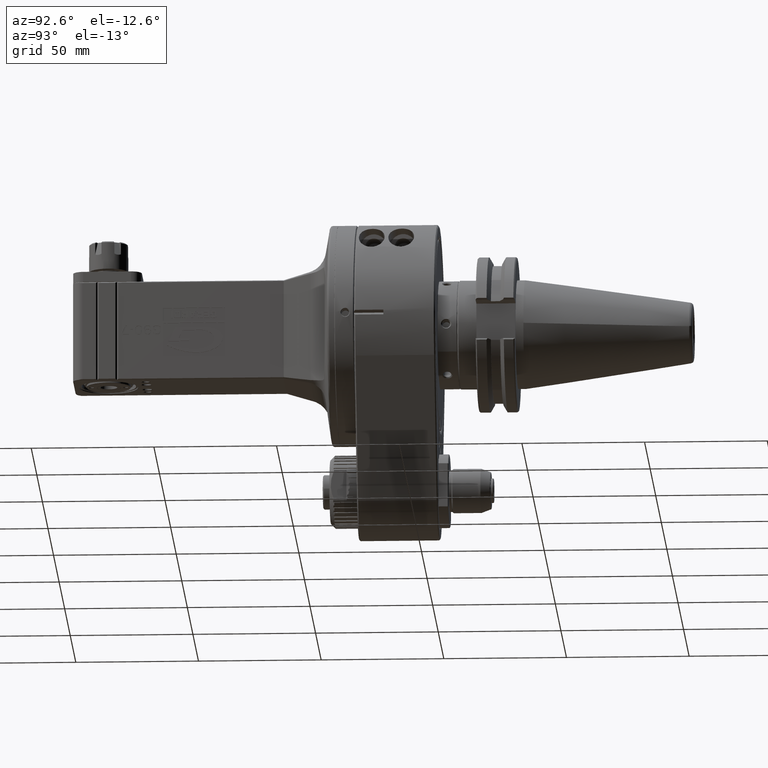
[diagram: clean part render]
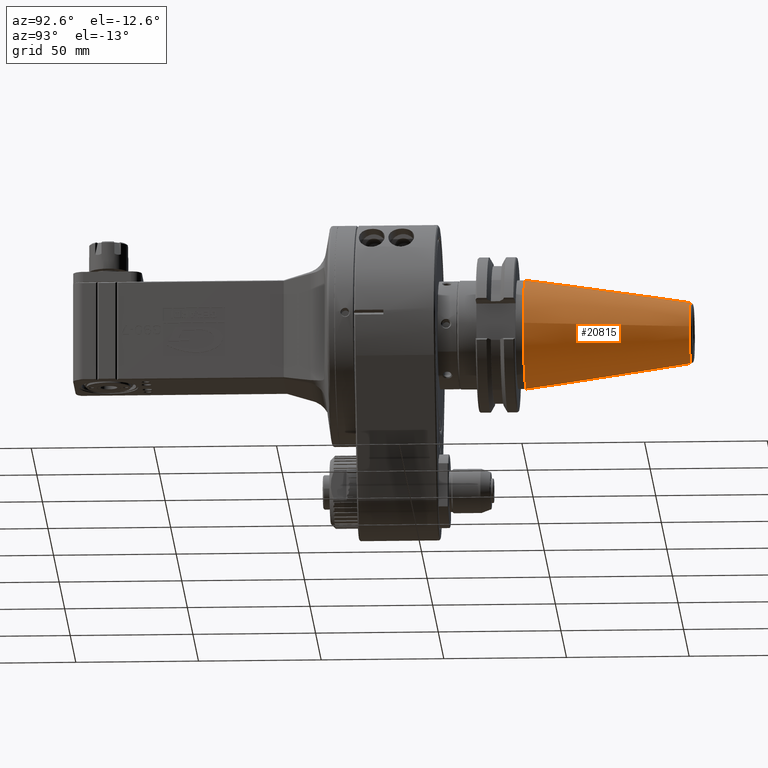
[diagram: same view with one face highlighted and labeled with its STEP entity id]
A machine part, auxiliary view. The second image highlights one B-rep face of the part: STEP entity #20815.
In plain terms, the highlighted conical surface has half-angle 8.29 deg.
Its self-contained STEP definition (entity closure, byte-faithful):
#590=CONICAL_SURFACE('',#22772,17.32914378212,0.14468779499033);
#2326=LINE('',#40315,#4128);
#4128=VECTOR('',#28282,17.32914378212);
#5676=FACE_OUTER_BOUND('',#6957,.T.);
#6957=EDGE_LOOP('',(#18462,#18463,#18464,#18465,#18466,#18467));
#7842=CIRCLE('',#22770,22.225);
#7843=CIRCLE('',#22771,22.225);
#7844=CIRCLE('',#22773,12.43328756423);
#7845=CIRCLE('',#22774,12.43328756423);
#9779=VERTEX_POINT('',#40308);
#9780=VERTEX_POINT('',#40309);
#9781=VERTEX_POINT('',#40314);
#9782=VERTEX_POINT('',#40316);
#12703=EDGE_CURVE('',#9779,#9780,#7842,.T.);
#12704=EDGE_CURVE('',#9780,#9779,#7843,.T.);
#12706=EDGE_CURVE('',#9779,#9781,#2326,.T.);
#12707=EDGE_CURVE('',#9782,#9781,#7844,.T.);
#12708=EDGE_CURVE('',#9781,#9782,#7845,.T.);
#18462=ORIENTED_EDGE('',*,*,#12703,.T.);
#18463=ORIENTED_EDGE('',*,*,#12704,.T.);
#18464=ORIENTED_EDGE('',*,*,#12706,.T.);
#18465=ORIENTED_EDGE('',*,*,#12707,.F.);
#18466=ORIENTED_EDGE('',*,*,#12708,.F.);
#18467=ORIENTED_EDGE('',*,*,#12706,.F.);
#20815=ADVANCED_FACE('',(#5676),#590,.T.);
#22770=AXIS2_PLACEMENT_3D('',#40310,#28275,#28276);
#22771=AXIS2_PLACEMENT_3D('',#40311,#28277,#28278);
#22772=AXIS2_PLACEMENT_3D('',#40313,#28280,#28281);
#22773=AXIS2_PLACEMENT_3D('',#40317,#28283,#28284);
#22774=AXIS2_PLACEMENT_3D('',#40318,#28285,#28286);
#28275=DIRECTION('center_axis',(0.,1.,0.));
#28276=DIRECTION('ref_axis',(1.,0.,0.));
#28277=DIRECTION('center_axis',(0.,1.,0.));
#28278=DIRECTION('ref_axis',(1.,0.,0.));
#28280=DIRECTION('center_axis',(0.,-1.,0.));
#28281=DIRECTION('ref_axis',(-1.,0.,0.));
#28282=DIRECTION('',(-0.144183493972653,0.989550968907533,-1.76573854383491E-17));
#28283=DIRECTION('center_axis',(0.,1.,0.));
#28284=DIRECTION('ref_axis',(-1.,0.,0.));
#28285=DIRECTION('center_axis',(0.,1.,0.));
#28286=DIRECTION('ref_axis',(-1.,0.,0.));
#40308=CARTESIAN_POINT('',(22.225,170.,-1.563934797371E-14));
#40309=CARTESIAN_POINT('',(-22.225,170.,4.7421254835965E-14));
#40310=CARTESIAN_POINT('Origin',(0.,170.,-1.563934797371E-14));
#40311=CARTESIAN_POINT('Origin',(0.,170.,-1.563934797371E-14));
#40313=CARTESIAN_POINT('Origin',(-3.105103986336E-14,203.6009284458,-2.786020723447E-14));
#40314=CARTESIAN_POINT('',(12.43328756423,237.2018568916,-4.008106649523E-14));
#40315=CARTESIAN_POINT('',(17.32914378212,203.6009284458,-2.57379991879963E-14));
#40316=CARTESIAN_POINT('',(12.4302958177292,237.2018568916,0.272737123579774));
#40317=CARTESIAN_POINT('Origin',(-3.310850333684E-14,237.2018568916,-4.008106649523E-14));
#40318=CARTESIAN_POINT('Origin',(-3.310850333684E-14,237.2018568916,-4.008106649523E-14));